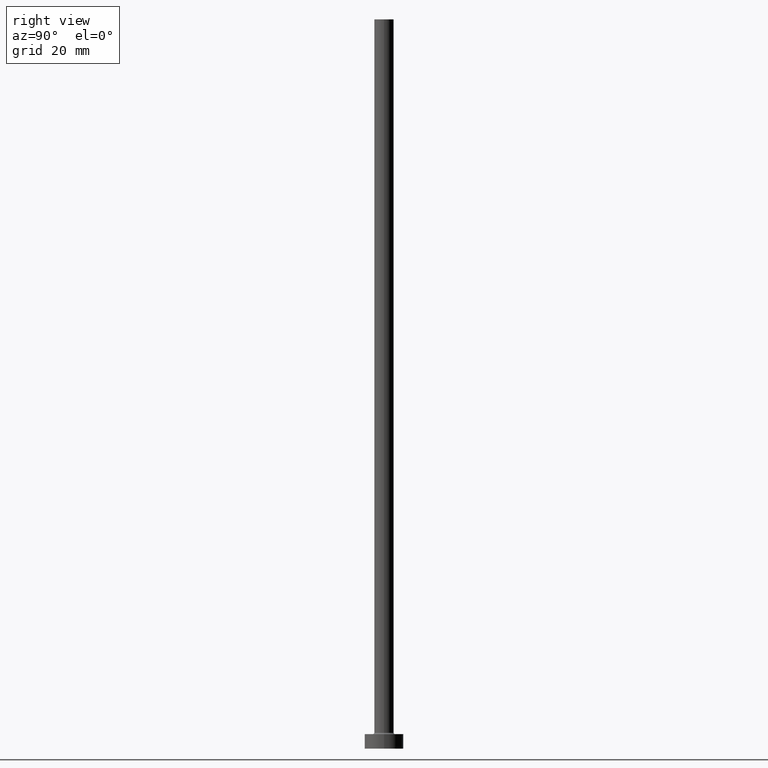
[diagram: clean part render]
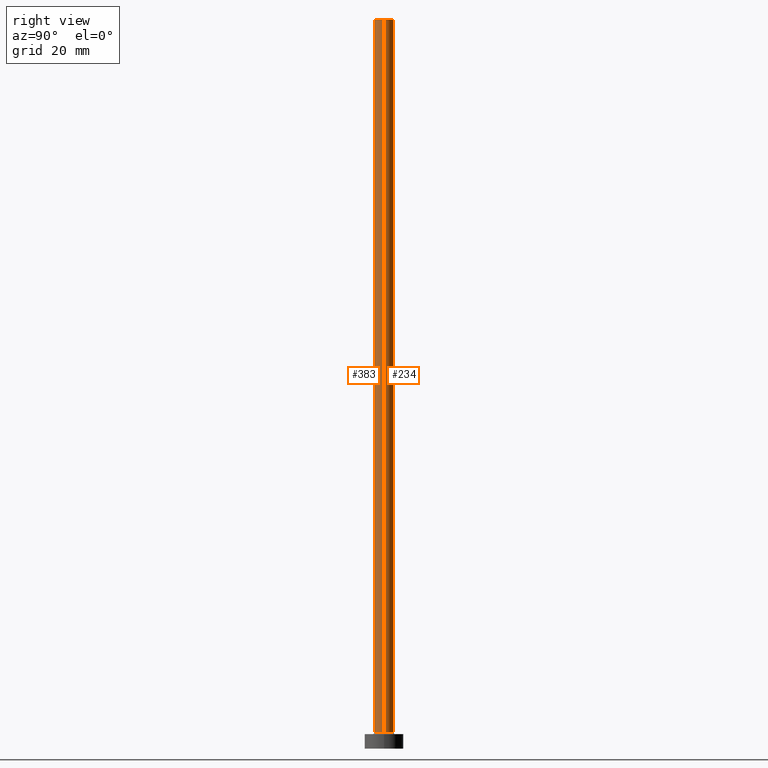
[diagram: same view with one multi-face feature highlighted, each face labeled with its STEP entity id]
A machine part, right view. The highlighted faces form ONE feature: a constant-radius fillet chain: 2 tangent blend faces with common blend radius 2 mm. The faces share edges in the B-rep.
Their STEP definitions:
[1] entity #234 (Cylinder):
#7 = CIRCLE ( 'NONE', #326, 2.000000000000000000 ) ;
#9 = DIRECTION ( 'NONE',  ( -1.000000000000000000, 0.000000000000000000, 0.000000000000000000 ) ) ;
#24 = ORIENTED_EDGE ( 'NONE', *, *, #357, .T. ) ;
#50 = AXIS2_PLACEMENT_3D ( 'NONE', #327, #441, #9 ) ;
#59 = DIRECTION ( 'NONE',  ( 0.000000000000000000, 0.000000000000000000, 1.000000000000000000 ) ) ;
#71 = EDGE_LOOP ( 'NONE', ( #386, #24, #250, #272 ) ) ;
#130 = CARTESIAN_POINT ( 'NONE',  ( -2.000000000000000000, 0.000000000000000000, 3.299999999999997158 ) ) ;
#133 = CARTESIAN_POINT ( 'NONE',  ( 2.000000000000000000, 2.449293598294706414E-16, 150.0000000000000000 ) ) ;
#148 = DIRECTION ( 'NONE',  ( 0.000000000000000000, 0.000000000000000000, 1.000000000000000000 ) ) ;
#156 = EDGE_CURVE ( 'NONE', #279, #303, #7, .T. ) ;
#162 = DIRECTION ( 'NONE',  ( 1.000000000000000000, 0.000000000000000000, 0.000000000000000000 ) ) ;
#163 = AXIS2_PLACEMENT_3D ( 'NONE', #398, #59, #162 ) ;
#177 = CIRCLE ( 'NONE', #163, 2.000000000000000000 ) ;
#178 = DIRECTION ( 'NONE',  ( -0.000000000000000000, -0.000000000000000000, -1.000000000000000000 ) ) ;
#194 = VECTOR ( 'NONE', #207, 1000.000000000000000 ) ;
#203 = CARTESIAN_POINT ( 'NONE',  ( 2.000000000000000000, 2.449293598294706414E-16, 150.0000000000000000 ) ) ;
#207 = DIRECTION ( 'NONE',  ( -0.000000000000000000, -0.000000000000000000, -1.000000000000000000 ) ) ;
#234 = ADVANCED_FACE ( 'NONE', ( #260 ), #328, .T. ) ;
#244 = EDGE_CURVE ( 'NONE', #333, #280, #177, .T. ) ;
#250 = ORIENTED_EDGE ( 'NONE', *, *, #156, .T. ) ;
#260 = FACE_OUTER_BOUND ( 'NONE', #71, .T. ) ;
#272 = ORIENTED_EDGE ( 'NONE', *, *, #409, .F. ) ;
#279 = VERTEX_POINT ( 'NONE', #399 ) ;
#280 = VERTEX_POINT ( 'NONE', #290 ) ;
#282 = CARTESIAN_POINT ( 'NONE',  ( 0.000000000000000000, 0.000000000000000000, 3.299999999999997158 ) ) ;
#286 = DIRECTION ( 'NONE',  ( 1.000000000000000000, 0.000000000000000000, 0.000000000000000000 ) ) ;
#290 = CARTESIAN_POINT ( 'NONE',  ( -2.000000000000000000, 0.000000000000000000, 150.0000000000000000 ) ) ;
#303 = VERTEX_POINT ( 'NONE', #130 ) ;
#307 = LINE ( 'NONE', #133, #194 ) ;
#314 = LINE ( 'NONE', #349, #412 ) ;
#326 = AXIS2_PLACEMENT_3D ( 'NONE', #282, #148, #286 ) ;
#327 = CARTESIAN_POINT ( 'NONE',  ( 0.000000000000000000, 0.000000000000000000, 150.0000000000000000 ) ) ;
#328 = CYLINDRICAL_SURFACE ( 'NONE', #50, 2.000000000000000000 ) ;
#333 = VERTEX_POINT ( 'NONE', #203 ) ;
#349 = CARTESIAN_POINT ( 'NONE',  ( -2.000000000000000000, 0.000000000000000000, 150.0000000000000000 ) ) ;
#357 = EDGE_CURVE ( 'NONE', #333, #279, #307, .T. ) ;
#386 = ORIENTED_EDGE ( 'NONE', *, *, #244, .F. ) ;
#398 = CARTESIAN_POINT ( 'NONE',  ( 0.000000000000000000, 0.000000000000000000, 150.0000000000000000 ) ) ;
#399 = CARTESIAN_POINT ( 'NONE',  ( 2.000000000000000000, 2.449293598294706414E-16, 3.299999999999997158 ) ) ;
#409 = EDGE_CURVE ( 'NONE', #280, #303, #314, .T. ) ;
#412 = VECTOR ( 'NONE', #178, 1000.000000000000000 ) ;
#441 = DIRECTION ( 'NONE',  ( -0.000000000000000000, -0.000000000000000000, -1.000000000000000000 ) ) ;
[2] entity #383 (Cylinder):
#3 = EDGE_CURVE ( 'NONE', #280, #333, #257, .T. ) ;
#8 = EDGE_CURVE ( 'NONE', #303, #279, #18, .T. ) ;
#18 = CIRCLE ( 'NONE', #117, 2.000000000000000000 ) ;
#36 = CARTESIAN_POINT ( 'NONE',  ( 0.000000000000000000, 0.000000000000000000, 150.0000000000000000 ) ) ;
#52 = EDGE_LOOP ( 'NONE', ( #451, #241, #137, #134 ) ) ;
#68 = CYLINDRICAL_SURFACE ( 'NONE', #448, 2.000000000000000000 ) ;
#102 = DIRECTION ( 'NONE',  ( 0.000000000000000000, 0.000000000000000000, 1.000000000000000000 ) ) ;
#117 = AXIS2_PLACEMENT_3D ( 'NONE', #428, #102, #317 ) ;
#124 = AXIS2_PLACEMENT_3D ( 'NONE', #36, #185, #426 ) ;
#130 = CARTESIAN_POINT ( 'NONE',  ( -2.000000000000000000, 0.000000000000000000, 3.299999999999997158 ) ) ;
#133 = CARTESIAN_POINT ( 'NONE',  ( 2.000000000000000000, 2.449293598294706414E-16, 150.0000000000000000 ) ) ;
#134 = ORIENTED_EDGE ( 'NONE', *, *, #8, .T. ) ;
#137 = ORIENTED_EDGE ( 'NONE', *, *, #409, .T. ) ;
#178 = DIRECTION ( 'NONE',  ( -0.000000000000000000, -0.000000000000000000, -1.000000000000000000 ) ) ;
#185 = DIRECTION ( 'NONE',  ( 0.000000000000000000, 0.000000000000000000, 1.000000000000000000 ) ) ;
#194 = VECTOR ( 'NONE', #207, 1000.000000000000000 ) ;
#203 = CARTESIAN_POINT ( 'NONE',  ( 2.000000000000000000, 2.449293598294706414E-16, 150.0000000000000000 ) ) ;
#207 = DIRECTION ( 'NONE',  ( -0.000000000000000000, -0.000000000000000000, -1.000000000000000000 ) ) ;
#241 = ORIENTED_EDGE ( 'NONE', *, *, #3, .F. ) ;
#257 = CIRCLE ( 'NONE', #124, 2.000000000000000000 ) ;
#279 = VERTEX_POINT ( 'NONE', #399 ) ;
#280 = VERTEX_POINT ( 'NONE', #290 ) ;
#290 = CARTESIAN_POINT ( 'NONE',  ( -2.000000000000000000, 0.000000000000000000, 150.0000000000000000 ) ) ;
#303 = VERTEX_POINT ( 'NONE', #130 ) ;
#307 = LINE ( 'NONE', #133, #194 ) ;
#314 = LINE ( 'NONE', #349, #412 ) ;
#317 = DIRECTION ( 'NONE',  ( 1.000000000000000000, 0.000000000000000000, 0.000000000000000000 ) ) ;
#333 = VERTEX_POINT ( 'NONE', #203 ) ;
#347 = DIRECTION ( 'NONE',  ( -1.000000000000000000, 0.000000000000000000, 0.000000000000000000 ) ) ;
#349 = CARTESIAN_POINT ( 'NONE',  ( -2.000000000000000000, 0.000000000000000000, 150.0000000000000000 ) ) ;
#357 = EDGE_CURVE ( 'NONE', #333, #279, #307, .T. ) ;
#383 = ADVANCED_FACE ( 'NONE', ( #385 ), #68, .T. ) ;
#384 = DIRECTION ( 'NONE',  ( -0.000000000000000000, -0.000000000000000000, -1.000000000000000000 ) ) ;
#385 = FACE_OUTER_BOUND ( 'NONE', #52, .T. ) ;
#399 = CARTESIAN_POINT ( 'NONE',  ( 2.000000000000000000, 2.449293598294706414E-16, 3.299999999999997158 ) ) ;
#409 = EDGE_CURVE ( 'NONE', #280, #303, #314, .T. ) ;
#412 = VECTOR ( 'NONE', #178, 1000.000000000000000 ) ;
#415 = CARTESIAN_POINT ( 'NONE',  ( 0.000000000000000000, 0.000000000000000000, 150.0000000000000000 ) ) ;
#426 = DIRECTION ( 'NONE',  ( 1.000000000000000000, 0.000000000000000000, 0.000000000000000000 ) ) ;
#428 = CARTESIAN_POINT ( 'NONE',  ( 0.000000000000000000, 0.000000000000000000, 3.299999999999997158 ) ) ;
#448 = AXIS2_PLACEMENT_3D ( 'NONE', #415, #384, #347 ) ;
#451 = ORIENTED_EDGE ( 'NONE', *, *, #357, .F. ) ;